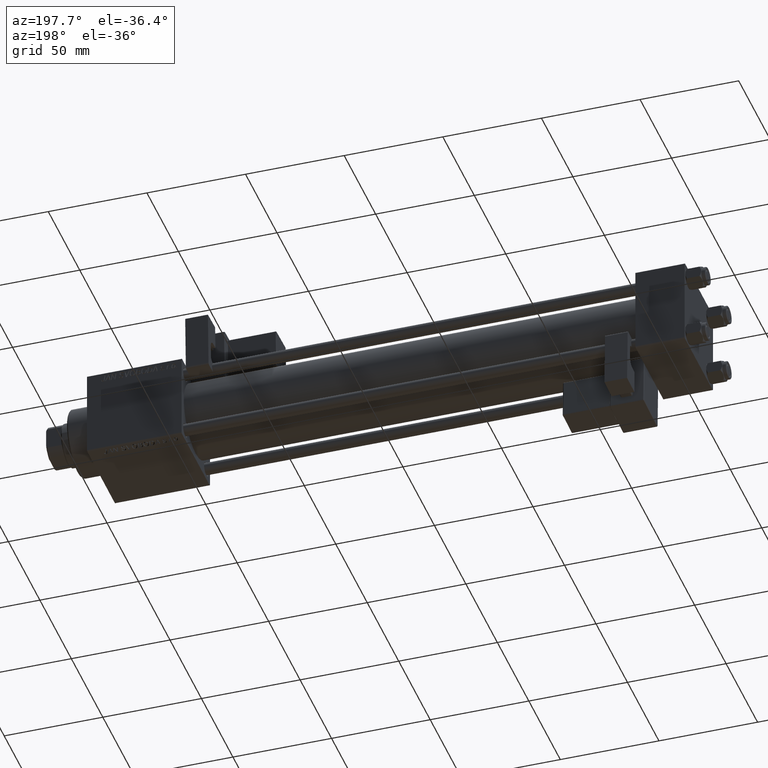
[diagram: clean part render]
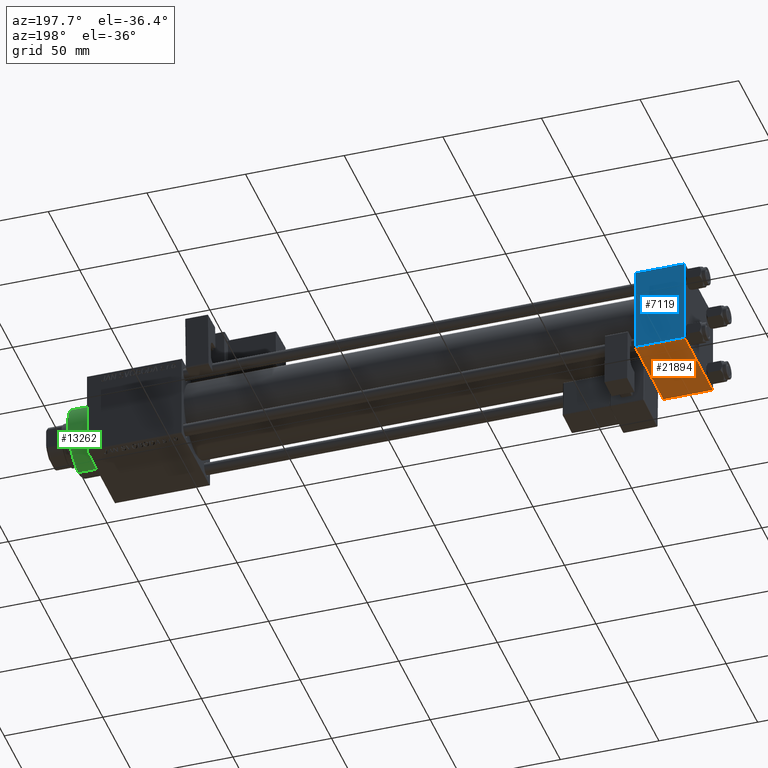
[diagram: same view with three faces highlighted in distinct colors, each labeled with its STEP entity id]
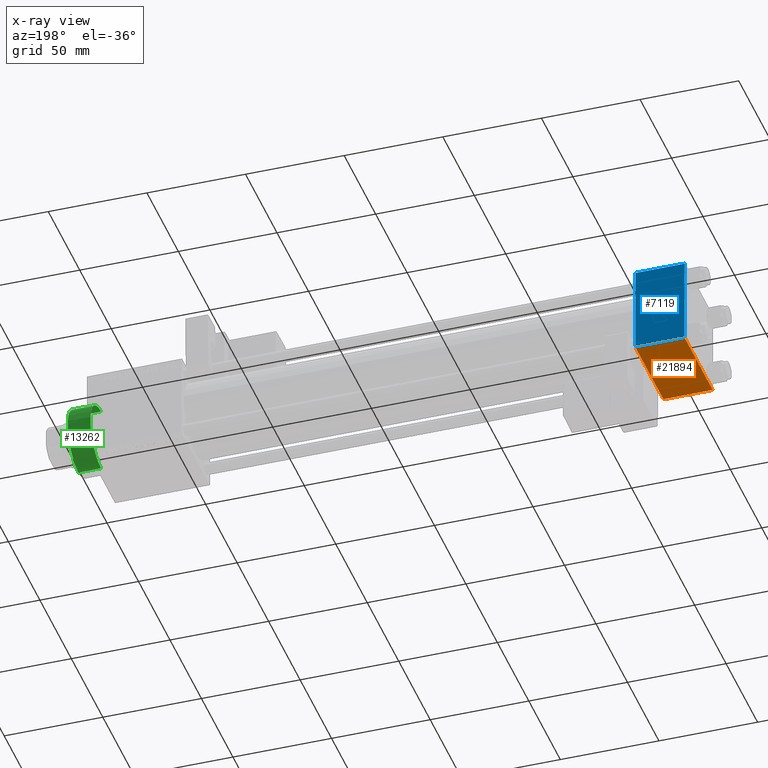
[diagram: x-ray of the same camera — body ghosted, the three highlighted faces saturated]
A machine part, auxiliary view with three faces highlighted in distinct colors.
The next image is the same camera in x-ray (body ghosted, the three faces saturated) — at least one of them is partly hidden behind the body in this view.
Their STEP definitions:

[orange] entity #21894 — the highlighted planar face has unit normal (0, 0, -1).
#2481 = DIRECTION ( 'NONE',  ( 1.000000000000000000, 0.000000000000000000, 0.000000000000000000 ) ) ;
#5624 = EDGE_CURVE ( 'NONE', #9814, #13590, #33835, .T. ) ;
#6325 = EDGE_CURVE ( 'NONE', #13590, #47521, #19936, .T. ) ;
#7678 = FACE_OUTER_BOUND ( 'NONE', #53232, .T. ) ;
#7731 = DIRECTION ( 'NONE',  ( -1.000000000000000000, 0.000000000000000000, 0.000000000000000000 ) ) ;
#9227 = CARTESIAN_POINT ( 'NONE',  ( 0.000000000000000000, -21.99999999999997158, -22.50000000000000711 ) ) ;
#9466 = CARTESIAN_POINT ( 'NONE',  ( 0.000000000000000000, 21.99999999999999289, -22.49999999999999645 ) ) ;
#9814 = VERTEX_POINT ( 'NONE', #35053 ) ;
#12021 = CARTESIAN_POINT ( 'NONE',  ( 25.00000000000000000, 22.50000000000000000, -22.49999999999999645 ) ) ;
#13590 = VERTEX_POINT ( 'NONE', #42065 ) ;
#16089 = PLANE ( 'NONE',  #27880 ) ;
#17638 = EDGE_CURVE ( 'NONE', #21235, #9814, #18783, .T. ) ;
#18783 = LINE ( 'NONE', #39757, #44910 ) ;
#19936 = LINE ( 'NONE', #28384, #47235 ) ;
#21235 = VERTEX_POINT ( 'NONE', #9466 ) ;
#21894 = ADVANCED_FACE ( 'NONE', ( #7678 ), #16089, .T. ) ;
#22105 = DIRECTION ( 'NONE',  ( 0.000000000000000000, -1.000000000000000000, -2.312964634635742957E-16 ) ) ;
#24521 = DIRECTION ( 'NONE',  ( 0.000000000000000000, 2.312964634635742957E-16, -1.000000000000000000 ) ) ;
#25180 = LINE ( 'NONE', #29513, #41239 ) ;
#27880 = AXIS2_PLACEMENT_3D ( 'NONE', #12021, #24521, #44664 ) ;
#28384 = CARTESIAN_POINT ( 'NONE',  ( 0.000000000000000000, -21.99999999999998579, -22.50000000000000711 ) ) ;
#29513 = CARTESIAN_POINT ( 'NONE',  ( 0.000000000000000000, 22.50000000000000000, -22.49999999999999645 ) ) ;
#33416 = EDGE_CURVE ( 'NONE', #21235, #47521, #25180, .T. ) ;
#33835 = LINE ( 'NONE', #43070, #46316 ) ;
#35053 = CARTESIAN_POINT ( 'NONE',  ( 25.00000000000000000, 21.99999999999999289, -22.49999999999999645 ) ) ;
#39757 = CARTESIAN_POINT ( 'NONE',  ( 25.00000000000000000, 21.99999999999999289, -22.49999999999999645 ) ) ;
#41113 = ORIENTED_EDGE ( 'NONE', *, *, #6325, .T. ) ;
#41239 = VECTOR ( 'NONE', #46125, 1000.000000000000000 ) ;
#42065 = CARTESIAN_POINT ( 'NONE',  ( 25.00000000000000000, -21.99999999999997158, -22.50000000000000711 ) ) ;
#42186 = ORIENTED_EDGE ( 'NONE', *, *, #5624, .T. ) ;
#43070 = CARTESIAN_POINT ( 'NONE',  ( 25.00000000000000000, 22.50000000000000000, -22.49999999999999645 ) ) ;
#43513 = ORIENTED_EDGE ( 'NONE', *, *, #17638, .T. ) ;
#44664 = DIRECTION ( 'NONE',  ( 0.000000000000000000, 1.000000000000000000, 2.312964634635742957E-16 ) ) ;
#44910 = VECTOR ( 'NONE', #2481, 1000.000000000000000 ) ;
#46125 = DIRECTION ( 'NONE',  ( 0.000000000000000000, -1.000000000000000000, -2.312964634635742957E-16 ) ) ;
#46316 = VECTOR ( 'NONE', #22105, 1000.000000000000000 ) ;
#47235 = VECTOR ( 'NONE', #7731, 1000.000000000000000 ) ;
#47521 = VERTEX_POINT ( 'NONE', #9227 ) ;
#53015 = ORIENTED_EDGE ( 'NONE', *, *, #33416, .F. ) ;
#53232 = EDGE_LOOP ( 'NONE', ( #53015, #43513, #42186, #41113 ) ) ;

[blue] entity #7119 — the highlighted planar face has unit normal (0, 1, 0).
#4343 = EDGE_CURVE ( 'NONE', #39388, #37302, #16736, .T. ) ;
#5489 = CARTESIAN_POINT ( 'NONE',  ( 25.00000000000000000, 22.50000000000000000, 21.99999999999999645 ) ) ;
#7119 = ADVANCED_FACE ( 'NONE', ( #27163 ), #10850, .T. ) ;
#7555 = DIRECTION ( 'NONE',  ( 0.000000000000000000, 0.000000000000000000, -1.000000000000000000 ) ) ;
#8066 = ORIENTED_EDGE ( 'NONE', *, *, #48642, .T. ) ;
#8447 = DIRECTION ( 'NONE',  ( -1.000000000000000000, 0.000000000000000000, 0.000000000000000000 ) ) ;
#9511 = LINE ( 'NONE', #17915, #47875 ) ;
#10850 = PLANE ( 'NONE',  #37757 ) ;
#12149 = CARTESIAN_POINT ( 'NONE',  ( 0.000000000000000000, 22.50000000000000000, 21.99999999999999645 ) ) ;
#12401 = CARTESIAN_POINT ( 'NONE',  ( 25.00000000000000000, 22.50000000000000000, 22.50000000000000355 ) ) ;
#12403 = VERTEX_POINT ( 'NONE', #32888 ) ;
#16736 = LINE ( 'NONE', #12401, #47168 ) ;
#17915 = CARTESIAN_POINT ( 'NONE',  ( 25.00000000000000000, 22.50000000000000000, -21.99999999999998224 ) ) ;
#19404 = VERTEX_POINT ( 'NONE', #12149 ) ;
#23083 = CARTESIAN_POINT ( 'NONE',  ( 25.00000000000000000, 22.50000000000000000, 22.50000000000000355 ) ) ;
#24326 = CARTESIAN_POINT ( 'NONE',  ( 25.00000000000000000, 22.50000000000000000, -21.99999999999996803 ) ) ;
#25042 = EDGE_CURVE ( 'NONE', #37302, #12403, #9511, .T. ) ;
#27163 = FACE_OUTER_BOUND ( 'NONE', #48946, .T. ) ;
#28210 = LINE ( 'NONE', #44817, #52830 ) ;
#28714 = DIRECTION ( 'NONE',  ( 0.000000000000000000, 0.000000000000000000, -1.000000000000000000 ) ) ;
#32888 = CARTESIAN_POINT ( 'NONE',  ( 0.000000000000000000, 22.50000000000000000, -21.99999999999996803 ) ) ;
#33782 = VECTOR ( 'NONE', #52098, 1000.000000000000000 ) ;
#33903 = ORIENTED_EDGE ( 'NONE', *, *, #4343, .T. ) ;
#34821 = ORIENTED_EDGE ( 'NONE', *, *, #25042, .T. ) ;
#35519 = CARTESIAN_POINT ( 'NONE',  ( 25.00000000000000000, 22.50000000000000000, 21.99999999999999645 ) ) ;
#37302 = VERTEX_POINT ( 'NONE', #24326 ) ;
#37757 = AXIS2_PLACEMENT_3D ( 'NONE', #23083, #39708, #48656 ) ;
#39073 = LINE ( 'NONE', #35519, #33782 ) ;
#39388 = VERTEX_POINT ( 'NONE', #5489 ) ;
#39708 = DIRECTION ( 'NONE',  ( -0.000000000000000000, 1.000000000000000000, 0.000000000000000000 ) ) ;
#43774 = ORIENTED_EDGE ( 'NONE', *, *, #48269, .F. ) ;
#44817 = CARTESIAN_POINT ( 'NONE',  ( 0.000000000000000000, 22.50000000000000000, 22.50000000000000355 ) ) ;
#47168 = VECTOR ( 'NONE', #28714, 1000.000000000000000 ) ;
#47875 = VECTOR ( 'NONE', #8447, 1000.000000000000000 ) ;
#48269 = EDGE_CURVE ( 'NONE', #19404, #12403, #28210, .T. ) ;
#48642 = EDGE_CURVE ( 'NONE', #19404, #39388, #39073, .T. ) ;
#48656 = DIRECTION ( 'NONE',  ( 0.000000000000000000, -0.000000000000000000, 1.000000000000000000 ) ) ;
#48946 = EDGE_LOOP ( 'NONE', ( #33903, #34821, #43774, #8066 ) ) ;
#52098 = DIRECTION ( 'NONE',  ( 1.000000000000000000, 0.000000000000000000, 0.000000000000000000 ) ) ;
#52830 = VECTOR ( 'NONE', #7555, 1000.000000000000000 ) ;

[green] entity #13262 — the highlighted cylindrical surface (edge-blend (fillet) strip) has radius 17 mm, axis along (-1, -0, -0).
#4 = FACE_OUTER_BOUND ( 'NONE', #46250, .T. ) ;
#1980 = DIRECTION ( 'NONE',  ( 1.000000000000000000, 0.000000000000000000, 0.000000000000000000 ) ) ;
#2190 = ORIENTED_EDGE ( 'NONE', *, *, #49529, .T. ) ;
#3380 = VECTOR ( 'NONE', #20592, 1000.000000000000000 ) ;
#3759 = CARTESIAN_POINT ( 'NONE',  ( 0.000000000000000000, 0.000000000000000000, 40.19999999999999574 ) ) ;
#5567 = ORIENTED_EDGE ( 'NONE', *, *, #49469, .T. ) ;
#6787 = VERTEX_POINT ( 'NONE', #16873 ) ;
#10037 = CARTESIAN_POINT ( 'NONE',  ( 17.00000000000000000, 2.081899558550500280E-15, 40.19999999999999574 ) ) ;
#10915 = CARTESIAN_POINT ( 'NONE',  ( 0.000000000000000000, 0.000000000000000000, 28.69999999999999929 ) ) ;
#11907 = DIRECTION ( 'NONE',  ( 1.000000000000000000, 0.000000000000000000, 0.000000000000000000 ) ) ;
#12211 = DIRECTION ( 'NONE',  ( -1.000000000000000000, 0.000000000000000000, 0.000000000000000000 ) ) ;
#12922 = EDGE_CURVE ( 'NONE', #33225, #35844, #14497, .T. ) ;
#13262 = ADVANCED_FACE ( 'NONE', ( #4 ), #28529, .T. ) ;
#13609 = AXIS2_PLACEMENT_3D ( 'NONE', #20357, #20892, #12211 ) ;
#14497 = CIRCLE ( 'NONE', #42320, 17.00000000000000000 ) ;
#16873 = CARTESIAN_POINT ( 'NONE',  ( -17.00000000000000000, 0.000000000000000000, 40.19999999999999574 ) ) ;
#19190 = CARTESIAN_POINT ( 'NONE',  ( 17.00000000000000000, 2.081899558550500280E-15, 28.69999999999999929 ) ) ;
#19845 = AXIS2_PLACEMENT_3D ( 'NONE', #3759, #40761, #11907 ) ;
#20357 = CARTESIAN_POINT ( 'NONE',  ( 0.000000000000000000, 0.000000000000000000, 40.70000000000000284 ) ) ;
#20592 = DIRECTION ( 'NONE',  ( -0.000000000000000000, -0.000000000000000000, -1.000000000000000000 ) ) ;
#20613 = CARTESIAN_POINT ( 'NONE',  ( -17.00000000000000000, 0.000000000000000000, 40.70000000000000284 ) ) ;
#20892 = DIRECTION ( 'NONE',  ( -0.000000000000000000, -0.000000000000000000, -1.000000000000000000 ) ) ;
#21757 = ORIENTED_EDGE ( 'NONE', *, *, #12922, .T. ) ;
#25216 = LINE ( 'NONE', #41031, #3380 ) ;
#25499 = LINE ( 'NONE', #20613, #38890 ) ;
#28529 = CYLINDRICAL_SURFACE ( 'NONE', #13609, 17.00000000000000000 ) ;
#33225 = VERTEX_POINT ( 'NONE', #19190 ) ;
#35844 = VERTEX_POINT ( 'NONE', #40828 ) ;
#38890 = VECTOR ( 'NONE', #49467, 1000.000000000000000 ) ;
#40761 = DIRECTION ( 'NONE',  ( 0.000000000000000000, 0.000000000000000000, -1.000000000000000000 ) ) ;
#40828 = CARTESIAN_POINT ( 'NONE',  ( -17.00000000000000000, 0.000000000000000000, 28.69999999999999929 ) ) ;
#41031 = CARTESIAN_POINT ( 'NONE',  ( 17.00000000000000000, 2.081899558550500280E-15, 40.70000000000000284 ) ) ;
#42320 = AXIS2_PLACEMENT_3D ( 'NONE', #10915, #52805, #1980 ) ;
#42908 = EDGE_CURVE ( 'NONE', #6787, #35844, #25499, .T. ) ;
#43337 = CIRCLE ( 'NONE', #19845, 17.00000000000000000 ) ;
#46250 = EDGE_LOOP ( 'NONE', ( #2190, #5567, #21757, #48266 ) ) ;
#48266 = ORIENTED_EDGE ( 'NONE', *, *, #42908, .F. ) ;
#49467 = DIRECTION ( 'NONE',  ( -0.000000000000000000, -0.000000000000000000, -1.000000000000000000 ) ) ;
#49469 = EDGE_CURVE ( 'NONE', #50558, #33225, #25216, .T. ) ;
#49529 = EDGE_CURVE ( 'NONE', #6787, #50558, #43337, .T. ) ;
#50558 = VERTEX_POINT ( 'NONE', #10037 ) ;
#52805 = DIRECTION ( 'NONE',  ( 0.000000000000000000, 0.000000000000000000, 1.000000000000000000 ) ) ;